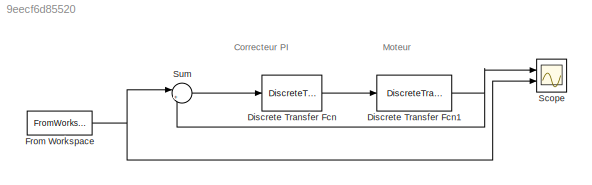
MODEL slx_9eecf6d85520
KIND model
CONFIG AbsTol = auto
CONFIG EnableMultiTasking = off
CONFIG FixedStep = Te
CONFIG MaxStep = auto
CONFIG MinStep = auto
CONFIG RelTol = 1e-3
CONFIG SampleTimeConstraint = Unconstrained
CONFIG Solver = FixedStepAuto
CONFIG SolverName = FixedStepAuto
CONFIG StartTime = 0.0
CONFIG StopTime = 30
BLOCK [DiscreteTransferFcn] Discrete Transfer Fcn
  Denominator = PI1.Denominator{1,1}
  InputPortMap = u0
  Numerator = PI1.Numerator{1,1}
  Ports = [1, 1]
BLOCK [DiscreteTransferFcn] Discrete Transfer Fcn1
  Denominator = GzMain.Denominator{1,1}
  InputPortMap = u0
  Numerator = GzMain.Numerator{1,1}
  Ports = [1, 1]
BLOCK [FromWorkspace] From Workspace
  VariableName = SBPA
BLOCK [Scope] Scope
  Floating = off
  NumInputPorts = 2
  Ports = [2]
  ScopeSpecificationString = Simulink.scopes.TimeScopeBlockCfg('CurrentConfiguration', extmgr.ConfigurationSet(extmgr.Configuration('Core','General UI',true),extmgr.Configuration('Core','Source UI',true),extmgr.Configuration('Sources','WiredSimulink',true),extmgr.Configuration('Visuals','Time Domain',true,'SerializedDisplays',{struct('MinYLimReal','-5.40556','MaxYLimReal','5.40074','YLabelReal','','MinYLimMag','0.00000','MaxY...<+1430ch>
BLOCK [Sum] Sum
  Inputs = |+-
  Ports = [2, 1]
ANNOTATION (root): Correcteur PI
ANNOTATION (root): Moteur
NET Discrete Transfer Fcn1:1 -> Scope:1, Sum:2
LINE Discrete Transfer Fcn:1 -> Discrete Transfer Fcn1:1
NET From Workspace:1 -> Scope:2, Sum:1
LINE Sum:1 -> Discrete Transfer Fcn:1
note: NET lines group one-source signal fan-out (src -> all destinations, sorted); 1:1 wires keep LINE
